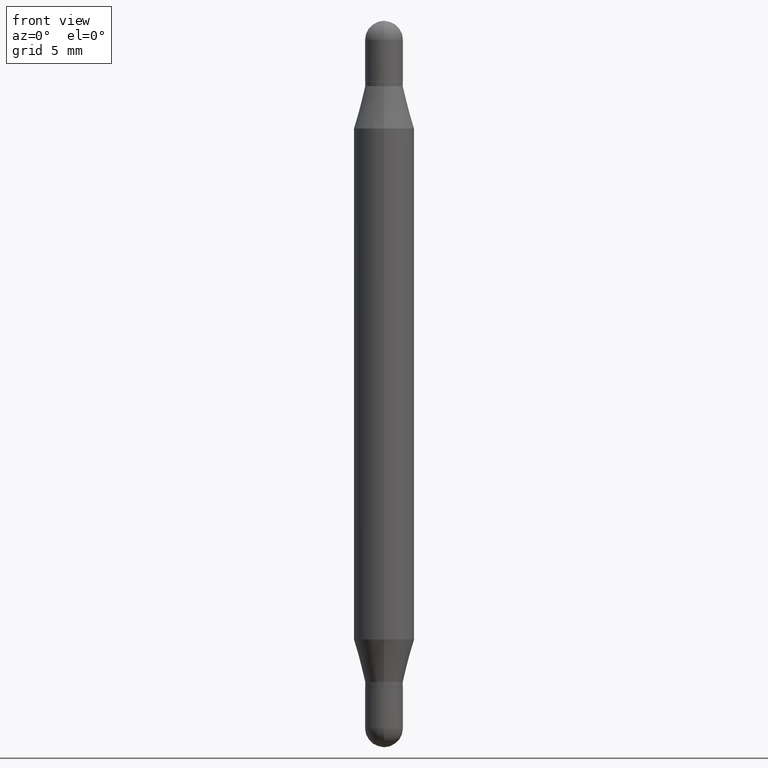
[diagram: clean part render]
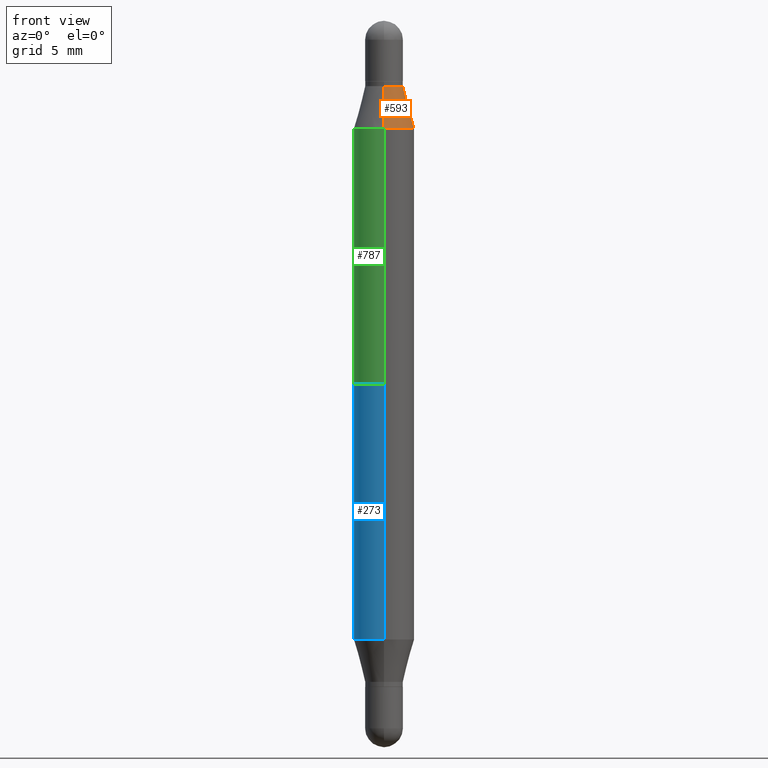
[diagram: same view with three faces highlighted in distinct colors, each labeled with its STEP entity id]
A machine part, front view with three faces highlighted in distinct colors.
Their STEP definitions:

[orange] entity #593 — the highlighted conical surface has half-angle 15 deg.
#15 = CARTESIAN_POINT ( 'NONE',  ( 2.679024468130094147E-16, 0.03904999999999916871, -0.1350000000000002032 ) ) ;
#41 = CARTESIAN_POINT ( 'NONE',  ( -2.726846925636128250E-16, -0.03905000000000012628, -0.1349999999999999256 ) ) ;
#59 = EDGE_CURVE ( 'NONE', #1098, #78, #1065, .T. ) ;
#74 = CARTESIAN_POINT ( 'NONE',  ( 4.287811248607519320E-16, 0.06249999999999921590, -0.2225165914374915288 ) ) ;
#78 = VERTEX_POINT ( 'NONE', #15 ) ;
#80 = AXIS2_PLACEMENT_3D ( 'NONE', #406, #1107, #916 ) ;
#126 = EDGE_CURVE ( 'NONE', #1098, #1041, #522, .T. ) ;
#132 = LINE ( 'NONE', #732, #908 ) ;
#159 = EDGE_CURVE ( 'NONE', #78, #580, #132, .T. ) ;
#193 = DIRECTION ( 'NONE',  ( 2.445629184337248949E-29, 3.479844137619810818E-15, 1.000000000000000000 ) ) ;
#247 = ORIENTED_EDGE ( 'NONE', *, *, #862, .T. ) ;
#281 = CONICAL_SURFACE ( 'NONE', #80, 0.03904999999999964749, 0.2617993877991500740 ) ;
#305 = EDGE_LOOP ( 'NONE', ( #592, #528, #745, #247 ) ) ;
#406 = CARTESIAN_POINT ( 'NONE',  ( 3.338283836620345741E-29, -4.783346065146894413E-16, -0.1350000000000000644 ) ) ;
#468 = DIRECTION ( 'NONE',  ( -1.807323732225328562E-15, -0.2588190451025247363, -0.9659258262890673130 ) ) ;
#522 = LINE ( 'NONE', #41, #1102 ) ;
#528 = ORIENTED_EDGE ( 'NONE', *, *, #59, .F. ) ;
#580 = VERTEX_POINT ( 'NONE', #74 ) ;
#584 = FACE_OUTER_BOUND ( 'NONE', #305, .T. ) ;
#592 = ORIENTED_EDGE ( 'NONE', *, *, #159, .F. ) ;
#593 = ADVANCED_FACE ( 'NONE', ( #584 ), #281, .T. ) ;
#602 = CARTESIAN_POINT ( 'NONE',  ( 3.338283836620345741E-29, -4.783346065146894413E-16, -0.1350000000000000644 ) ) ;
#613 = AXIS2_PLACEMENT_3D ( 'NONE', #900, #701, #894 ) ;
#666 = CIRCLE ( 'NONE', #613, 0.06250000000000000000 ) ;
#701 = DIRECTION ( 'NONE',  ( 2.445629184337248949E-29, 3.479844137619810818E-15, 1.000000000000000000 ) ) ;
#717 = DIRECTION ( 'NONE',  ( 1.775627540710963525E-15, 0.2588190451025179639, -0.9659258262890690894 ) ) ;
#732 = CARTESIAN_POINT ( 'NONE',  ( 2.679024468130092668E-16, 0.03904999999999916871, -0.1350000000000002032 ) ) ;
#745 = ORIENTED_EDGE ( 'NONE', *, *, #126, .T. ) ;
#815 = AXIS2_PLACEMENT_3D ( 'NONE', #602, #193, #863 ) ;
#826 = CARTESIAN_POINT ( 'NONE',  ( -2.726846925636128250E-16, -0.03905000000000012628, -0.1349999999999999256 ) ) ;
#862 = EDGE_CURVE ( 'NONE', #1041, #580, #666, .T. ) ;
#863 = DIRECTION ( 'NONE',  ( -6.982962677686266711E-15, -1.000000000000000000, 3.497884755011892359E-15 ) ) ;
#894 = DIRECTION ( 'NONE',  ( -6.982962677686265922E-15, -1.000000000000000000, 3.278217592397115862E-15 ) ) ;
#900 = CARTESIAN_POINT ( 'NONE',  ( 3.124250706487097646E-29, -7.828787041729109440E-16, -0.2225165914374913068 ) ) ;
#908 = VECTOR ( 'NONE', #717, 39.37007874015748854 ) ;
#916 = DIRECTION ( 'NONE',  ( -6.982962677686266711E-15, -1.000000000000000000, 3.497884755011892359E-15 ) ) ;
#1041 = VERTEX_POINT ( 'NONE', #1083 ) ;
#1065 = CIRCLE ( 'NONE', #815, 0.03904999999999964749 ) ;
#1083 = CARTESIAN_POINT ( 'NONE',  ( -4.364351673553603615E-16, -0.06250000000000079103, -0.2225165914374911125 ) ) ;
#1098 = VERTEX_POINT ( 'NONE', #826 ) ;
#1102 = VECTOR ( 'NONE', #468, 39.37007874015748854 ) ;
#1107 = DIRECTION ( 'NONE',  ( -2.445629184337248949E-29, -3.479844137619810818E-15, -1.000000000000000000 ) ) ;

[blue] entity #273 — the highlighted cylindrical surface (edge-blend (fillet) strip) has radius 1.5875 mm, axis along (-0, -0, -1).
#21 = CIRCLE ( 'NONE', #634, 0.06250000000000000000 ) ;
#77 = CIRCLE ( 'NONE', #280, 0.06250000000000000000 ) ;
#112 = DIRECTION ( 'NONE',  ( 2.445629184337248949E-29, 3.479844137619810818E-15, 1.000000000000000000 ) ) ;
#137 = CARTESIAN_POINT ( 'NONE',  ( 0.000000000000000000, -5.228321854365732350E-15, -1.500000000000000444 ) ) ;
#140 = FACE_OUTER_BOUND ( 'NONE', #965, .T. ) ;
#160 = LINE ( 'NONE', #504, #750 ) ;
#202 = DIRECTION ( 'NONE',  ( -6.982962677686265922E-15, -1.000000000000000000, 4.370956789862821150E-15 ) ) ;
#213 = DIRECTION ( 'NONE',  ( -6.982962677686265922E-15, -1.000000000000000000, 4.370956789862821150E-15 ) ) ;
#237 = EDGE_CURVE ( 'NONE', #1049, #367, #77, .T. ) ;
#252 = VERTEX_POINT ( 'NONE', #823 ) ;
#261 = LINE ( 'NONE', #272, #765 ) ;
#272 = CARTESIAN_POINT ( 'NONE',  ( -4.364351673553916201E-16, -0.06250000000000521805, -1.500000000000000222 ) ) ;
#273 = ADVANCED_FACE ( 'NONE', ( #140 ), #484, .T. ) ;
#280 = AXIS2_PLACEMENT_3D ( 'NONE', #1061, #1080, #213 ) ;
#344 = ORIENTED_EDGE ( 'NONE', *, *, #1003, .T. ) ;
#367 = VERTEX_POINT ( 'NONE', #1077 ) ;
#382 = DIRECTION ( 'NONE',  ( -6.982962677686265922E-15, -1.000000000000000000, 3.278217592397115862E-15 ) ) ;
#446 = EDGE_CURVE ( 'NONE', #252, #923, #21, .T. ) ;
#484 = CYLINDRICAL_SURFACE ( 'NONE', #583, 0.06250000000000000000 ) ;
#504 = CARTESIAN_POINT ( 'NONE',  ( 4.287811248607206733E-16, 0.06249999999999477501, -1.500000000000000666 ) ) ;
#542 = CARTESIAN_POINT ( 'NONE',  ( 3.124250706487097646E-29, -7.828787041729109440E-16, -0.2225165914374913068 ) ) ;
#547 = DIRECTION ( 'NONE',  ( -2.445629184337248949E-29, -3.479844137619810818E-15, -1.000000000000000000 ) ) ;
#583 = AXIS2_PLACEMENT_3D ( 'NONE', #137, #547, #202 ) ;
#634 = AXIS2_PLACEMENT_3D ( 'NONE', #542, #112, #382 ) ;
#736 = EDGE_CURVE ( 'NONE', #923, #367, #261, .T. ) ;
#747 = DIRECTION ( 'NONE',  ( -2.445629184337248949E-29, -3.479844137619810818E-15, -1.000000000000000000 ) ) ;
#750 = VECTOR ( 'NONE', #747, 39.37007874015748143 ) ;
#752 = ORIENTED_EDGE ( 'NONE', *, *, #237, .T. ) ;
#765 = VECTOR ( 'NONE', #1118, 39.37007874015748143 ) ;
#823 = CARTESIAN_POINT ( 'NONE',  ( 4.287811248607519320E-16, 0.06249999999999921590, -0.2225165914374915288 ) ) ;
#923 = VERTEX_POINT ( 'NONE', #1064 ) ;
#929 = ORIENTED_EDGE ( 'NONE', *, *, #736, .F. ) ;
#965 = EDGE_LOOP ( 'NONE', ( #1013, #344, #752, #929 ) ) ;
#997 = CARTESIAN_POINT ( 'NONE',  ( 4.287811248607390637E-16, 0.06249999999999554523, -1.277483408562509304 ) ) ;
#1003 = EDGE_CURVE ( 'NONE', #252, #1049, #160, .T. ) ;
#1013 = ORIENTED_EDGE ( 'NONE', *, *, #446, .F. ) ;
#1049 = VERTEX_POINT ( 'NONE', #997 ) ;
#1061 = CARTESIAN_POINT ( 'NONE',  ( 3.124250706487097646E-29, -4.460016081243167636E-15, -1.277483408562509082 ) ) ;
#1064 = CARTESIAN_POINT ( 'NONE',  ( -4.364351673553603615E-16, -0.06250000000000079103, -0.2225165914374911125 ) ) ;
#1077 = CARTESIAN_POINT ( 'NONE',  ( -4.364351673553603615E-16, -0.06250000000000445477, -1.277483408562508860 ) ) ;
#1080 = DIRECTION ( 'NONE',  ( -2.445629184337248949E-29, 3.491251668201163019E-15, 1.000000000000000000 ) ) ;
#1118 = DIRECTION ( 'NONE',  ( -2.445629184337248949E-29, -3.479844137619810818E-15, -1.000000000000000000 ) ) ;

[green] entity #787 — the highlighted cylindrical surface (edge-blend (fillet) strip) has radius 1.5875 mm, axis along (-0, -0, -1).
#17 = ORIENTED_EDGE ( 'NONE', *, *, #163, .F. ) ;
#23 = LINE ( 'NONE', #543, #871 ) ;
#70 = ORIENTED_EDGE ( 'NONE', *, *, #136, .F. ) ;
#74 = CARTESIAN_POINT ( 'NONE',  ( 4.287811248607519320E-16, 0.06249999999999921590, -0.2225165914374915288 ) ) ;
#136 = EDGE_CURVE ( 'NONE', #1041, #708, #23, .T. ) ;
#163 = EDGE_CURVE ( 'NONE', #580, #1041, #702, .T. ) ;
#165 = CARTESIAN_POINT ( 'NONE',  ( -4.364351673553731805E-16, -0.06250000000000262290, -0.7499999999999998890 ) ) ;
#171 = FACE_OUTER_BOUND ( 'NONE', #1053, .T. ) ;
#199 = DIRECTION ( 'NONE',  ( 2.445629184337248949E-29, 3.479844137619810818E-15, 1.000000000000000000 ) ) ;
#224 = AXIS2_PLACEMENT_3D ( 'NONE', #564, #199, #383 ) ;
#268 = CYLINDRICAL_SURFACE ( 'NONE', #790, 0.06250000000000000000 ) ;
#381 = CARTESIAN_POINT ( 'NONE',  ( 4.287811248607454732E-16, 0.06249999999999737710, -0.7500000000000004441 ) ) ;
#383 = DIRECTION ( 'NONE',  ( -6.982962677686265922E-15, -1.000000000000000000, 3.278217592397115862E-15 ) ) ;
#460 = DIRECTION ( 'NONE',  ( -2.445629184337248949E-29, -3.479844137619810818E-15, -1.000000000000000000 ) ) ;
#487 = DIRECTION ( 'NONE',  ( 0.000000000000000000, 1.000000000000000000, -4.370956789862821150E-15 ) ) ;
#497 = ORIENTED_EDGE ( 'NONE', *, *, #994, .F. ) ;
#498 = CARTESIAN_POINT ( 'NONE',  ( 1.834221888252937202E-29, -2.618438751150872954E-15, -0.7500000000000002220 ) ) ;
#543 = CARTESIAN_POINT ( 'NONE',  ( -4.364351673553916201E-16, -0.06250000000000521805, -1.500000000000000222 ) ) ;
#564 = CARTESIAN_POINT ( 'NONE',  ( 3.124250706487097646E-29, -7.828787041729109440E-16, -0.2225165914374913068 ) ) ;
#580 = VERTEX_POINT ( 'NONE', #74 ) ;
#586 = CIRCLE ( 'NONE', #874, 0.06250000000000000000 ) ;
#598 = CARTESIAN_POINT ( 'NONE',  ( 4.287811248607206733E-16, 0.06249999999999477501, -1.500000000000000666 ) ) ;
#606 = CARTESIAN_POINT ( 'NONE',  ( 0.000000000000000000, -5.228321854365732350E-15, -1.500000000000000444 ) ) ;
#644 = DIRECTION ( 'NONE',  ( -2.445629184337248949E-29, -3.479844137619810818E-15, -1.000000000000000000 ) ) ;
#702 = CIRCLE ( 'NONE', #224, 0.06250000000000000000 ) ;
#708 = VERTEX_POINT ( 'NONE', #165 ) ;
#757 = EDGE_CURVE ( 'NONE', #580, #963, #786, .T. ) ;
#786 = LINE ( 'NONE', #598, #1111 ) ;
#787 = ADVANCED_FACE ( 'NONE', ( #171 ), #268, .T. ) ;
#790 = AXIS2_PLACEMENT_3D ( 'NONE', #606, #460, #970 ) ;
#871 = VECTOR ( 'NONE', #644, 39.37007874015748143 ) ;
#874 = AXIS2_PLACEMENT_3D ( 'NONE', #498, #1021, #487 ) ;
#948 = DIRECTION ( 'NONE',  ( -2.445629184337248949E-29, -3.479844137619810818E-15, -1.000000000000000000 ) ) ;
#963 = VERTEX_POINT ( 'NONE', #381 ) ;
#970 = DIRECTION ( 'NONE',  ( -6.982962677686265922E-15, -1.000000000000000000, 4.370956789862821150E-15 ) ) ;
#994 = EDGE_CURVE ( 'NONE', #708, #963, #586, .T. ) ;
#1021 = DIRECTION ( 'NONE',  ( -0.000000000000000000, -3.485547902910486918E-15, -1.000000000000000000 ) ) ;
#1041 = VERTEX_POINT ( 'NONE', #1083 ) ;
#1053 = EDGE_LOOP ( 'NONE', ( #17, #1076, #497, #70 ) ) ;
#1076 = ORIENTED_EDGE ( 'NONE', *, *, #757, .T. ) ;
#1083 = CARTESIAN_POINT ( 'NONE',  ( -4.364351673553603615E-16, -0.06250000000000079103, -0.2225165914374911125 ) ) ;
#1111 = VECTOR ( 'NONE', #948, 39.37007874015748143 ) ;